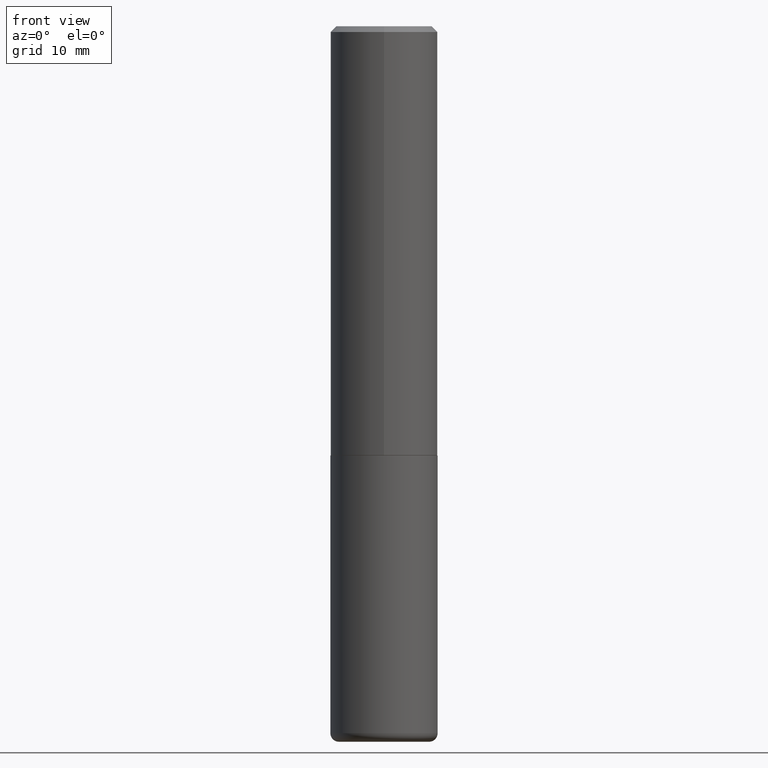
[diagram: clean part render]
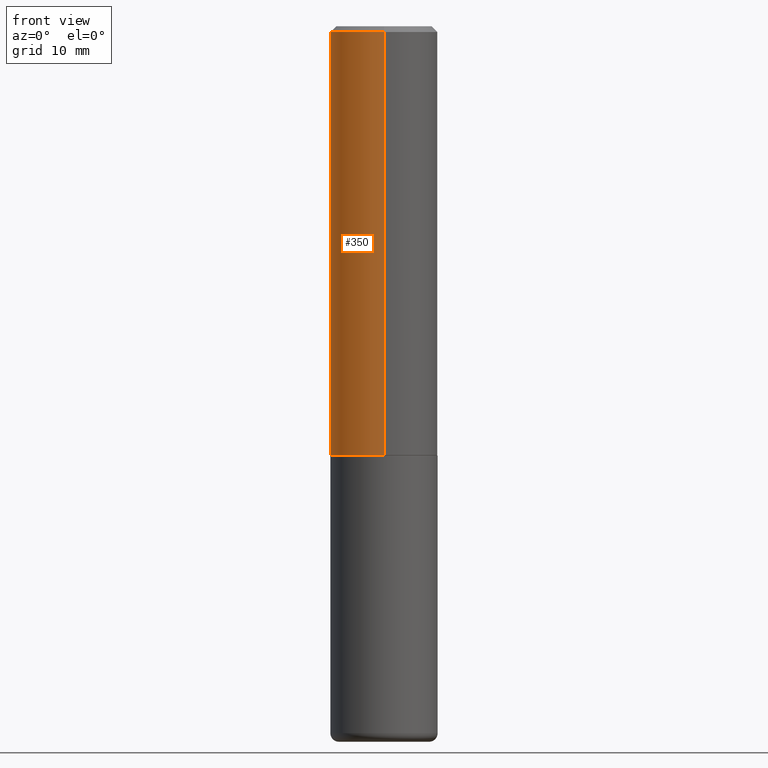
[diagram: same view with one face highlighted and labeled with its STEP entity id]
A machine part, front view. The second image highlights one B-rep face of the part: STEP entity #350.
In plain terms, the highlighted cylindrical surface (partial cylindrical patch) has radius 4.7625 mm, axis along (-0, 0, 1).
Its self-contained STEP definition (entity closure, byte-faithful):
#11 = ORIENTED_EDGE ( 'NONE', *, *, #294, .F. ) ;
#18 = CARTESIAN_POINT ( 'NONE',  ( 1.309305502066175205E-15, 0.1874999999999999167, -0.02000000000000069431 ) ) ;
#23 = CIRCLE ( 'NONE', #127, 0.1875000000000001943 ) ;
#32 = VECTOR ( 'NONE', #249, 39.37007874015748143 ) ;
#45 = CARTESIAN_POINT ( 'NONE',  ( 3.666148437875925943E-29, -5.233171026005651328E-15, -1.499000000000000110 ) ) ;
#47 = ORIENTED_EDGE ( 'NONE', *, *, #144, .T. ) ;
#63 = CYLINDRICAL_SURFACE ( 'NONE', #371, 0.1875000000000000833 ) ;
#76 = DIRECTION ( 'NONE',  ( -6.982962677686265922E-15, -1.000000000000000000, 2.913971193241877611E-15 ) ) ;
#82 = VERTEX_POINT ( 'NONE', #331 ) ;
#83 = DIRECTION ( 'NONE',  ( -2.445729444880537759E-29, 3.491108089396698105E-15, 1.000000000000000000 ) ) ;
#98 = EDGE_CURVE ( 'NONE', #82, #171, #336, .T. ) ;
#112 = DIRECTION ( 'NONE',  ( -6.982962677686266711E-15, -1.000000000000000000, 3.491108089396698105E-15 ) ) ;
#115 = LINE ( 'NONE', #242, #32 ) ;
#127 = AXIS2_PLACEMENT_3D ( 'NONE', #45, #237, #76 ) ;
#144 = EDGE_CURVE ( 'NONE', #82, #416, #23, .T. ) ;
#149 = EDGE_LOOP ( 'NONE', ( #280, #47, #407, #11 ) ) ;
#171 = VERTEX_POINT ( 'NONE', #18 ) ;
#177 = DIRECTION ( 'NONE',  ( -6.982962677686266711E-15, -1.000000000000000000, 3.483106191921935949E-15 ) ) ;
#183 = CARTESIAN_POINT ( 'NONE',  ( 0.000000000000000000, 0.000000000000000000, 0.000000000000000000 ) ) ;
#186 = DIRECTION ( 'NONE',  ( -2.445729444880537759E-29, 3.491108089396698105E-15, 1.000000000000000000 ) ) ;
#189 = CARTESIAN_POINT ( 'NONE',  ( -1.309305502066139509E-15, -0.1875000000000054123, -1.498999999999999444 ) ) ;
#207 = CIRCLE ( 'NONE', #250, 0.1874999999999999722 ) ;
#237 = DIRECTION ( 'NONE',  ( -2.445729444880537759E-29, 3.491108089396698105E-15, 1.000000000000000000 ) ) ;
#242 = CARTESIAN_POINT ( 'NONE',  ( -1.309305502066175600E-15, -0.1875000000000000833, 6.545827667618811658E-16 ) ) ;
#249 = DIRECTION ( 'NONE',  ( -2.445729444880537479E-29, 3.491108089396698105E-15, 1.000000000000000000 ) ) ;
#250 = AXIS2_PLACEMENT_3D ( 'NONE', #342, #83, #177 ) ;
#256 = VECTOR ( 'NONE', #391, 39.37007874015748143 ) ;
#269 = CARTESIAN_POINT ( 'NONE',  ( -1.286343374582161379E-15, -0.1875000000000000555, -0.01999999999999938979 ) ) ;
#280 = ORIENTED_EDGE ( 'NONE', *, *, #98, .F. ) ;
#294 = EDGE_CURVE ( 'NONE', #171, #390, #207, .T. ) ;
#318 = EDGE_CURVE ( 'NONE', #416, #390, #115, .T. ) ;
#331 = CARTESIAN_POINT ( 'NONE',  ( 1.332267629550206781E-15, 0.1874999999999949485, -1.499000000000000554 ) ) ;
#336 = LINE ( 'NONE', #361, #256 ) ;
#342 = CARTESIAN_POINT ( 'NONE',  ( 4.891458889761085187E-31, -6.982216178793409866E-17, -0.02000000000000004205 ) ) ;
#350 = ADVANCED_FACE ( 'NONE', ( #377 ), #63, .T. ) ;
#361 = CARTESIAN_POINT ( 'NONE',  ( 1.332267629550188243E-15, 0.1875000000000000833, -6.545827667618811658E-16 ) ) ;
#371 = AXIS2_PLACEMENT_3D ( 'NONE', #183, #186, #112 ) ;
#377 = FACE_OUTER_BOUND ( 'NONE', #149, .T. ) ;
#390 = VERTEX_POINT ( 'NONE', #269 ) ;
#391 = DIRECTION ( 'NONE',  ( -2.445729444880537479E-29, 3.491108089396698105E-15, 1.000000000000000000 ) ) ;
#407 = ORIENTED_EDGE ( 'NONE', *, *, #318, .T. ) ;
#416 = VERTEX_POINT ( 'NONE', #189 ) ;